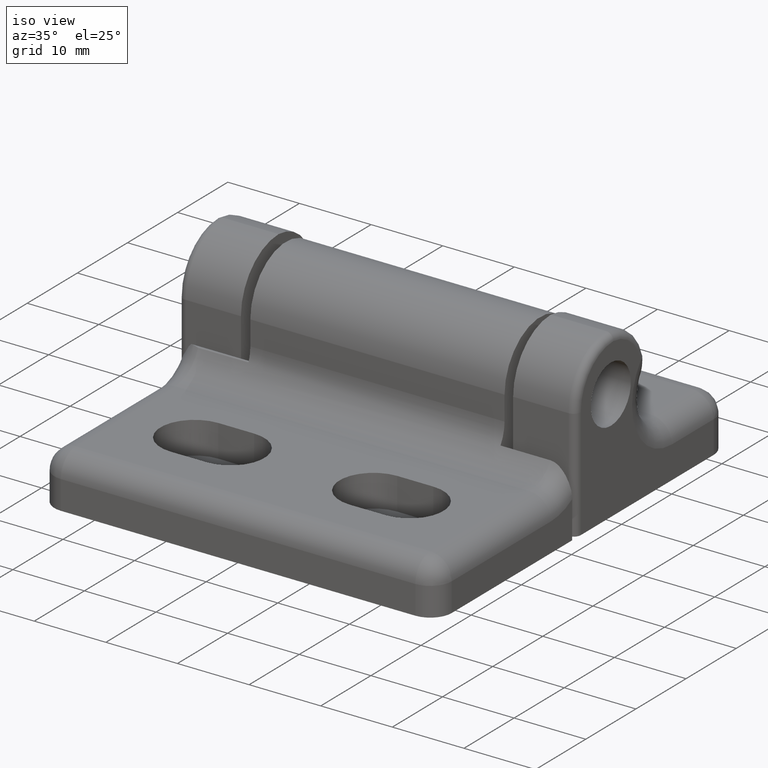
[diagram: clean part render]
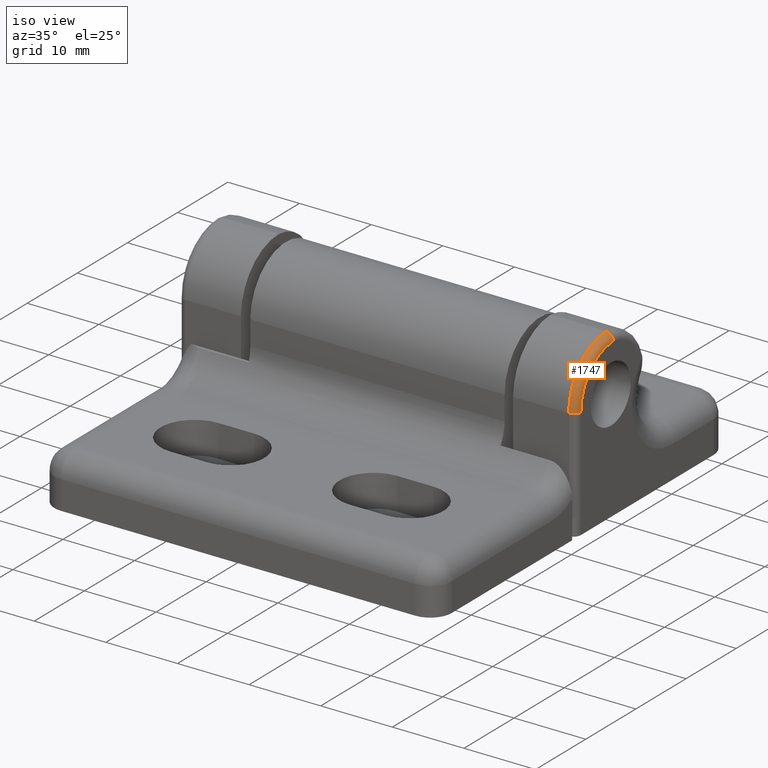
[diagram: same view with one face highlighted and labeled with its STEP entity id]
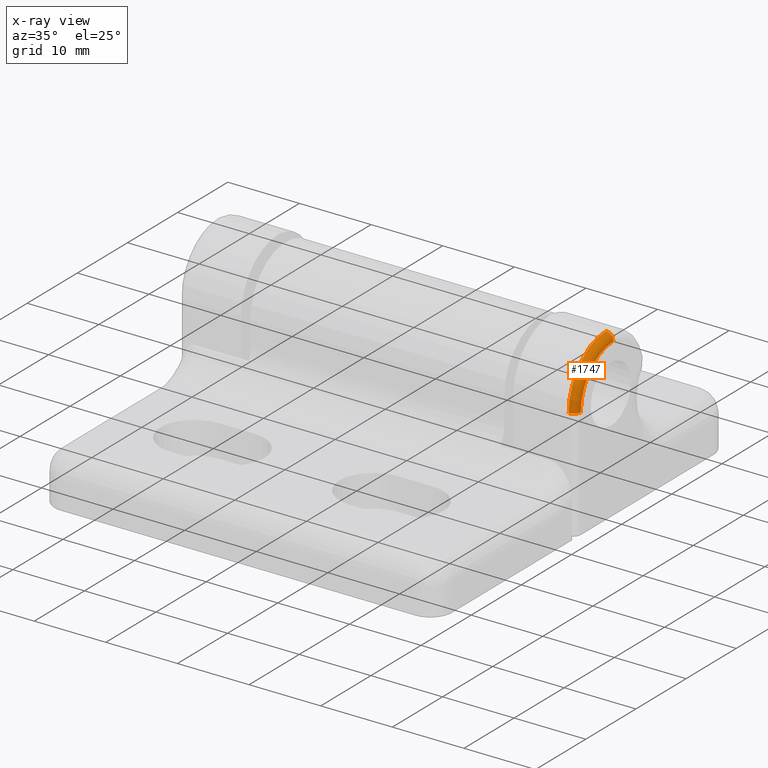
[diagram: x-ray of the same camera — body ghosted, the highlighted face saturated]
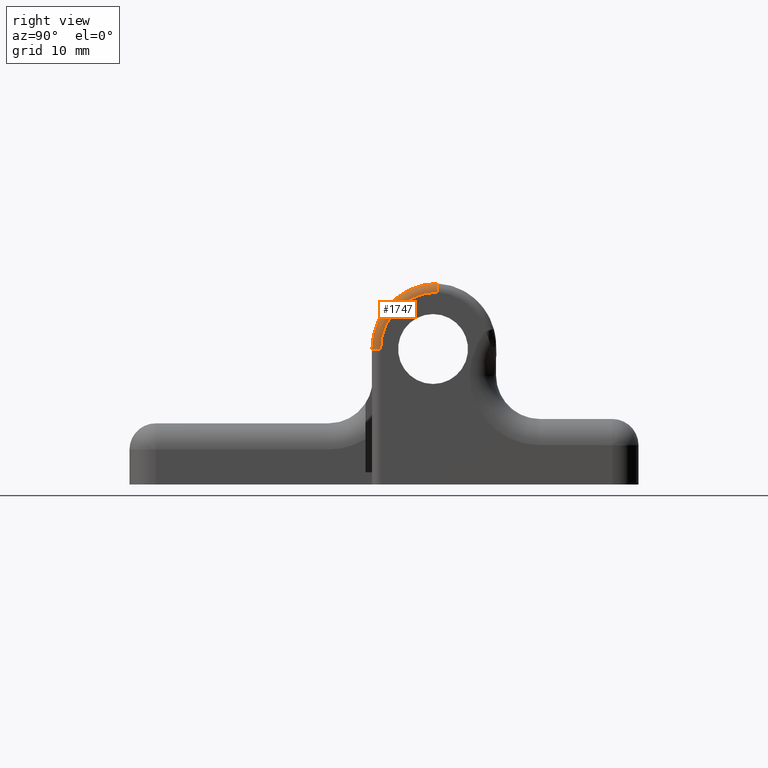
[diagram: same view with one face highlighted and labeled with its STEP entity id]
A machine part, iso view. The second image highlights one B-rep face of the part: STEP entity #1747.
The next image is the same camera in x-ray: the body ghosted, the highlighted face saturated — about 0% of this face is hidden behind the body in this view.
A second angle (right view) of the same face is appended — the face is thin or edge-on in the first view.
In plain terms, the highlighted toroidal blend (fillet) surface has major radius 6.5 mm and minor (blend) radius 1 mm.
Its self-contained STEP definition (entity closure, byte-faithful):
#38=TOROIDAL_SURFACE('',#1906,6.49999968198073,1.00000001850727);
#45=ELLIPSE('',#1905,1.00058040596228,1.00011728776836);
#174=FACE_OUTER_BOUND('',#283,.T.);
#283=EDGE_LOOP('',(#1394,#1395,#1396,#1397));
#655=CIRCLE('',#1844,7.5);
#670=CIRCLE('',#1871,6.5);
#684=CIRCLE('',#1907,1.);
#770=VERTEX_POINT('',#2696);
#776=VERTEX_POINT('',#2721);
#810=VERTEX_POINT('',#2819);
#811=VERTEX_POINT('',#2820);
#949=EDGE_CURVE('',#776,#770,#655,.T.);
#1000=EDGE_CURVE('',#810,#811,#670,.T.);
#1032=EDGE_CURVE('',#810,#770,#45,.T.);
#1033=EDGE_CURVE('',#811,#776,#684,.T.);
#1394=ORIENTED_EDGE('',*,*,#1032,.T.);
#1395=ORIENTED_EDGE('',*,*,#949,.F.);
#1396=ORIENTED_EDGE('',*,*,#1033,.F.);
#1397=ORIENTED_EDGE('',*,*,#1000,.F.);
#1747=ADVANCED_FACE('',(#174),#38,.T.);
#1844=AXIS2_PLACEMENT_3D('',#2723,#2113,#2114);
#1871=AXIS2_PLACEMENT_3D('',#2821,#2203,#2204);
#1905=AXIS2_PLACEMENT_3D('',#2957,#2285,#2286);
#1906=AXIS2_PLACEMENT_3D('',#2958,#2287,#2288);
#1907=AXIS2_PLACEMENT_3D('',#2959,#2289,#2290);
#2113=DIRECTION('center_axis',(-1.,0.,0.));
#2114=DIRECTION('ref_axis',(0.,0.,1.));
#2203=DIRECTION('center_axis',(1.,0.,0.));
#2204=DIRECTION('ref_axis',(0.,0.,1.));
#2285=DIRECTION('center_axis',(3.19601255347921E-5,-0.999600225008378,0.0282734706350443));
#2286=DIRECTION('ref_axis',(-0.127932128646725,-0.028045232514706,-0.991386319954595));
#2287=DIRECTION('center_axis',(1.,-5.95998399835049E-9,5.23888581698674E-9));
#2288=DIRECTION('ref_axis',(5.23888580122169E-9,0.,-1.));
#2289=DIRECTION('center_axis',(0.,0.,-1.));
#2290=DIRECTION('ref_axis',(-1.,0.,0.));
#2696=CARTESIAN_POINT('',(36.75,22.4677756572769,23.4977729309186));
#2721=CARTESIAN_POINT('',(36.75,14.9677756572818,15.9977729309299));
#2723=CARTESIAN_POINT('Origin',(36.75,22.4677756572818,15.9977729309299));
#2819=CARTESIAN_POINT('',(37.75,22.4395211150545,22.497711521474));
#2820=CARTESIAN_POINT('',(37.75,15.9677756572818,15.9977729309299));
#2821=CARTESIAN_POINT('Origin',(37.75,22.4677756572818,15.9977729309299));
#2957=CARTESIAN_POINT('Origin',(36.7498751313457,22.4394859868082,22.4976001065493));
#2958=CARTESIAN_POINT('Origin',(36.7500000203,22.4677754224731,15.9977731732477));
#2959=CARTESIAN_POINT('Origin',(36.75,15.9677756572818,15.9977729309299));